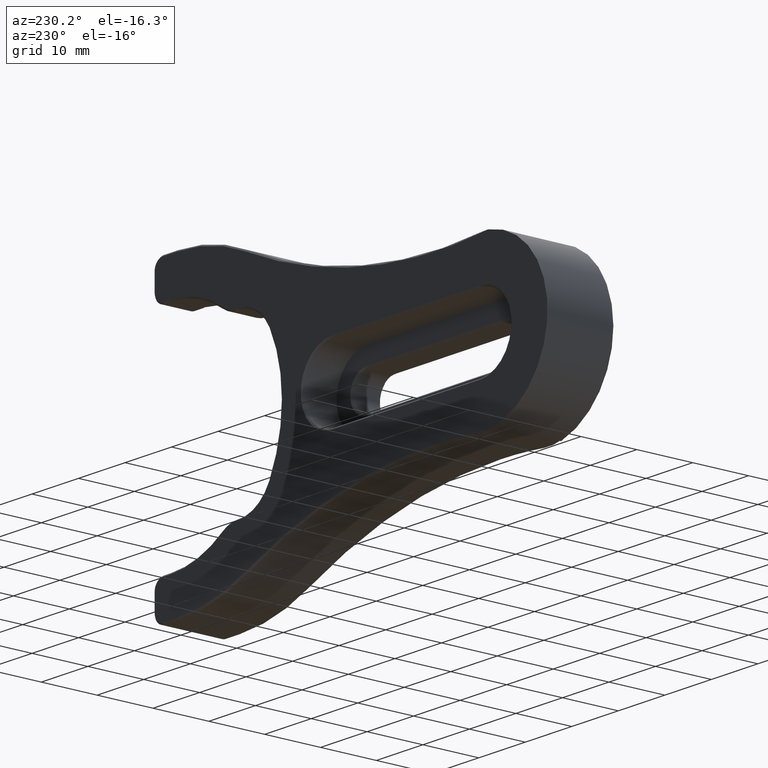
[diagram: clean part render]
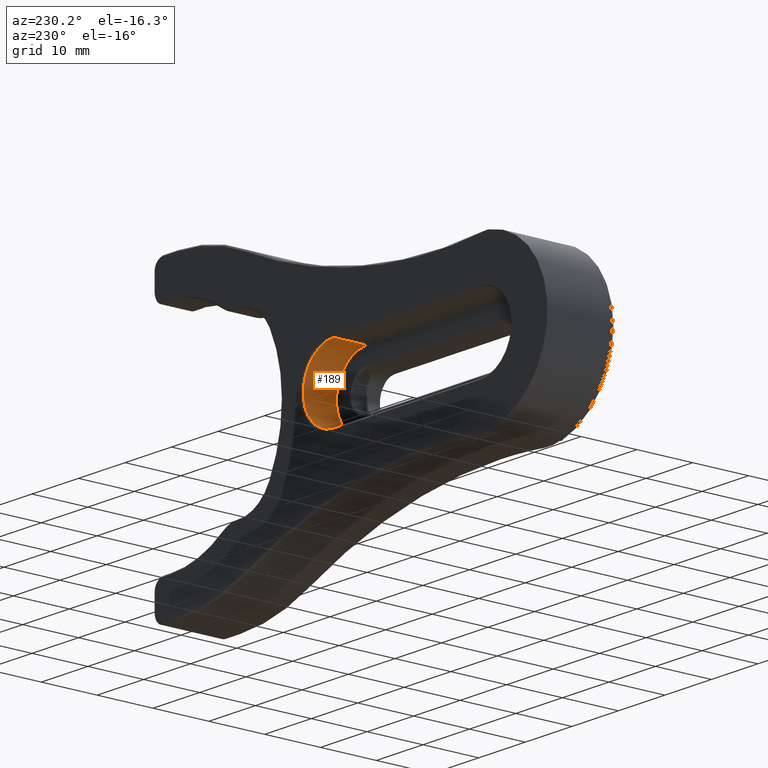
[diagram: same view with one face highlighted and labeled with its STEP entity id]
A machine part, auxiliary view. The second image highlights one B-rep face of the part: STEP entity #189.
In plain terms, the highlighted cylindrical surface (partial cylindrical patch) has radius 6.5 mm, axis along (-0, 1, -0).
Its self-contained STEP definition (entity closure, byte-faithful):
#12 = VERTEX_POINT ( 'NONE', #564 ) ;
#164 = CARTESIAN_POINT ( 'NONE',  ( -34.89999999999999147, 5.800000000000000711, 0.000000000000000000 ) ) ;
#183 = DIRECTION ( 'NONE',  ( -0.000000000000000000, 1.000000000000000000, -0.000000000000000000 ) ) ;
#189 = ADVANCED_FACE ( 'NONE', ( #1252 ), #232, .F. ) ;
#232 = CYLINDRICAL_SURFACE ( 'NONE', #1839, 6.500000000000000000 ) ;
#373 = VECTOR ( 'NONE', #183, 1000.000000000000000 ) ;
#387 = EDGE_LOOP ( 'NONE', ( #1430, #3137, #1435, #1817 ) ) ;
#564 = CARTESIAN_POINT ( 'NONE',  ( -34.89999999999999147, 11.74999999999999822, -6.500000000000000000 ) ) ;
#765 = DIRECTION ( 'NONE',  ( 0.000000000000000000, 0.000000000000000000, 1.000000000000000000 ) ) ;
#775 = DIRECTION ( 'NONE',  ( 0.000000000000000000, 0.000000000000000000, 1.000000000000000000 ) ) ;
#832 = AXIS2_PLACEMENT_3D ( 'NONE', #1259, #2057, #775 ) ;
#970 = AXIS2_PLACEMENT_3D ( 'NONE', #164, #2212, #2231 ) ;
#1014 = CARTESIAN_POINT ( 'NONE',  ( -34.89999999999999147, 5.800000000000000711, 0.000000000000000000 ) ) ;
#1182 = EDGE_CURVE ( 'NONE', #1336, #1288, #2745, .T. ) ;
#1229 = CARTESIAN_POINT ( 'NONE',  ( -34.89999999999999147, 5.800000000000000711, 6.500000000000000000 ) ) ;
#1252 = FACE_OUTER_BOUND ( 'NONE', #387, .T. ) ;
#1259 = CARTESIAN_POINT ( 'NONE',  ( -34.89999999999999147, 11.75000000000000000, 0.000000000000000000 ) ) ;
#1288 = VERTEX_POINT ( 'NONE', #1492 ) ;
#1336 = VERTEX_POINT ( 'NONE', #2094 ) ;
#1413 = CIRCLE ( 'NONE', #832, 6.500000000000000000 ) ;
#1430 = ORIENTED_EDGE ( 'NONE', *, *, #1182, .T. ) ;
#1435 = ORIENTED_EDGE ( 'NONE', *, *, #2943, .F. ) ;
#1459 = LINE ( 'NONE', #3289, #373 ) ;
#1492 = CARTESIAN_POINT ( 'NONE',  ( -34.89999999999999147, 11.74999999999999822, 6.500000000000000000 ) ) ;
#1649 = EDGE_CURVE ( 'NONE', #1288, #12, #1413, .T. ) ;
#1817 = ORIENTED_EDGE ( 'NONE', *, *, #2968, .F. ) ;
#1839 = AXIS2_PLACEMENT_3D ( 'NONE', #1014, #3039, #765 ) ;
#1929 = VECTOR ( 'NONE', #2388, 1000.000000000000000 ) ;
#1961 = CARTESIAN_POINT ( 'NONE',  ( -34.89999999999999147, 5.800000000000000711, -6.500000000000000000 ) ) ;
#2057 = DIRECTION ( 'NONE',  ( 0.000000000000000000, 1.000000000000000000, 0.000000000000000000 ) ) ;
#2094 = CARTESIAN_POINT ( 'NONE',  ( -34.89999999999999147, 5.800000000000000711, 6.500000000000000000 ) ) ;
#2140 = CIRCLE ( 'NONE', #970, 6.500000000000000000 ) ;
#2212 = DIRECTION ( 'NONE',  ( 0.000000000000000000, 1.000000000000000000, 0.000000000000000000 ) ) ;
#2231 = DIRECTION ( 'NONE',  ( 0.000000000000000000, 0.000000000000000000, 1.000000000000000000 ) ) ;
#2388 = DIRECTION ( 'NONE',  ( -0.000000000000000000, 1.000000000000000000, -0.000000000000000000 ) ) ;
#2745 = LINE ( 'NONE', #1229, #1929 ) ;
#2943 = EDGE_CURVE ( 'NONE', #2972, #12, #1459, .T. ) ;
#2968 = EDGE_CURVE ( 'NONE', #1336, #2972, #2140, .T. ) ;
#2972 = VERTEX_POINT ( 'NONE', #1961 ) ;
#3039 = DIRECTION ( 'NONE',  ( -0.000000000000000000, 1.000000000000000000, -0.000000000000000000 ) ) ;
#3137 = ORIENTED_EDGE ( 'NONE', *, *, #1649, .T. ) ;
#3289 = CARTESIAN_POINT ( 'NONE',  ( -34.89999999999999147, 5.800000000000000711, -6.500000000000000000 ) ) ;